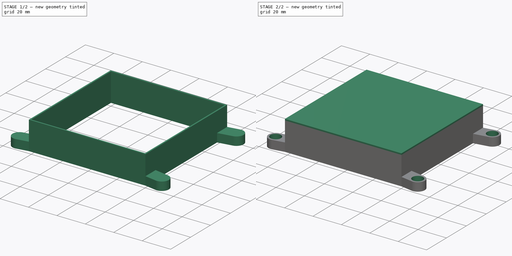
[diagram: build sequence overview — one tinted view per stage of 2, left to right]
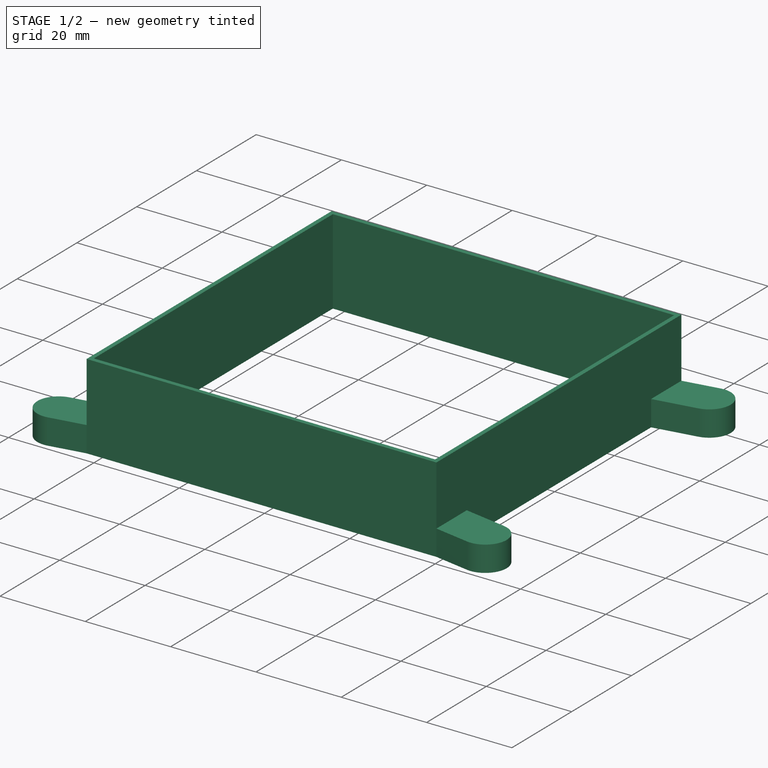
[diagram: stage 1 of 2 — iso view after this stage's code; geometry added in this stage tinted green]
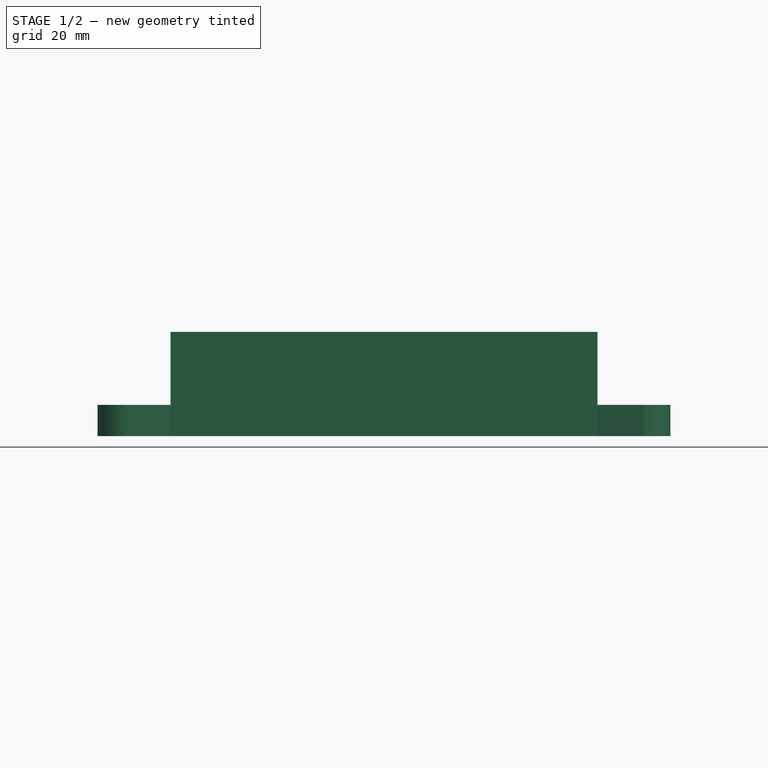
[diagram: stage 1 of 2 — front view after this stage's code; geometry added in this stage tinted green]
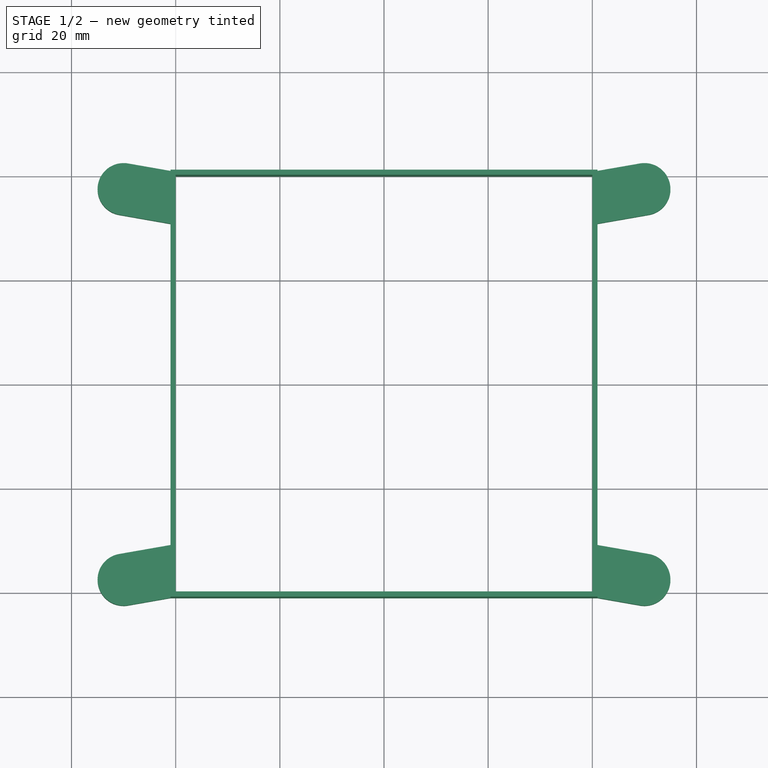
[diagram: stage 1 of 2 — top view after this stage's code; geometry added in this stage tinted green]
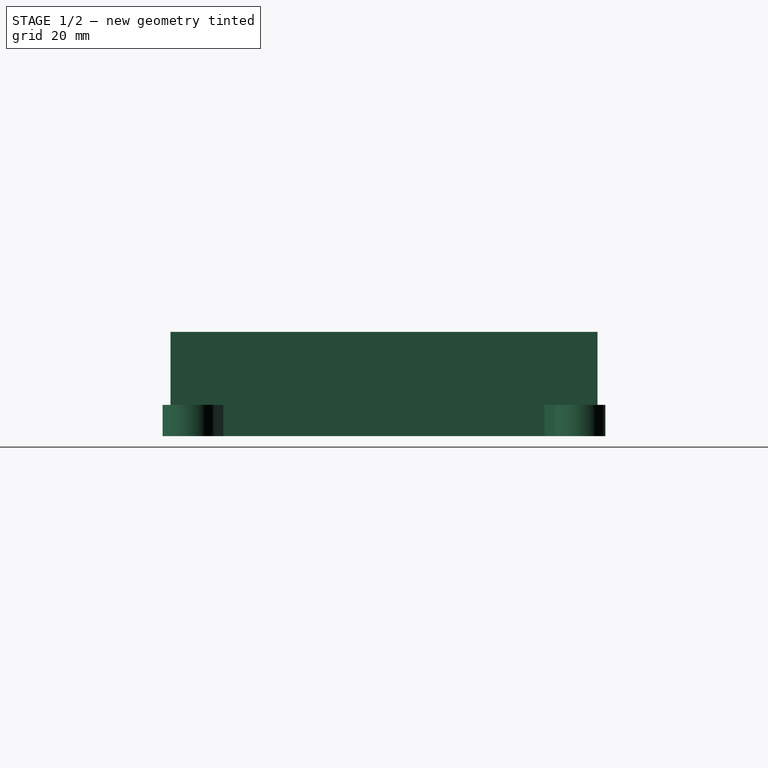
[diagram: stage 1 of 2 — right view after this stage's code; geometry added in this stage tinted green]
FCSTD DOCUMENT  (FreeCAD 1.0R38641 +678 (Git))
Label: box
License: All rights reserved
LicenseURL: https://en.wikipedia.org/wiki/All_rights_reserved
objects: Sketcher::SketchObject×4, PartDesign::Pad×3, PartDesign::Hole×1, PartDesign::Body×1
note: 21 computed .brp shape members not serialized (recipe doc carries the construction recipe); baked Part::Feature solids carry a one-line shape summary decoded from their .brp

FEATURE [Sketcher::SketchObject] Sketch218
  ArcFitTolerance = 0
  AttachmentSupport = -> [XY_Plane027]
  FullyConstrained = true
  MakeInternals = false
  MapMode = 5
  sketch-geometry (24):
    g0: LineSegment StartX=-40 StartY=40 StartZ=0 EndX=40 EndY=40 EndZ=0
    g1: LineSegment StartX=-40 StartY=40 StartZ=0 EndX=-40 EndY=-40 EndZ=0
    g2: LineSegment StartX=-40 StartY=-40 StartZ=0 EndX=40 EndY=-40 EndZ=0
    g3: LineSegment StartX=40 StartY=40 StartZ=0 EndX=40 EndY=-40 EndZ=0
    g4: LineSegment StartX=-41.0206 StartY=41 StartZ=0 EndX=40.9794 EndY=41 EndZ=0
    g5: LineSegment StartX=41 StartY=30.8522 StartZ=0 EndX=41 EndY=-30.8478 EndZ=0
    g6: LineSegment StartX=41 StartY=-41 StartZ=0 EndX=-41 EndY=-41 EndZ=0
    g7: LineSegment StartX=-41 StartY=-30.8478 StartZ=0 EndX=-41 EndY=30.8434 EndZ=0
    g8: GeomPoint [constr] X=50 Y=37.5 Z=0
    g9: GeomPoint [constr] X=-50 Y=37.5 Z=0
    g10: GeomPoint [constr] X=-50 Y=-37.5 Z=0
    g11: GeomPoint [constr] X=50 Y=-37.5 Z=0
    g12: ArcOfCircle CenterX=50 CenterY=37.5 CenterZ=0 NormalX=0 NormalY=0 NormalZ=1 AngleXU=0 Radius=5 StartAngle=4.88532 EndAngle=8.02692
    g13: ArcOfCircle CenterX=-50 CenterY=37.5 CenterZ=0 NormalX=0 NormalY=0 NormalZ=1 AngleXU=0 Radius=5 StartAngle=1.397 EndAngle=4.53859
    g14: ArcOfCircle CenterX=-50 CenterY=-37.5 CenterZ=0 NormalX=0 NormalY=0 NormalZ=1 AngleXU=0 Radius=5 StartAngle=1.74416 EndAngle=4.88575
    g15: ArcOfCircle CenterX=50 CenterY=-37.5 CenterZ=0 NormalX=0 NormalY=0 NormalZ=1 AngleXU=0 Radius=5 StartAngle=4.53903 EndAngle=7.68062
    g16: LineSegment StartX=-49.1375 StartY=-42.4251 StartZ=0 EndX=-41 EndY=-41 EndZ=0
    g17: LineSegment StartX=41 StartY=-41 StartZ=0 EndX=49.1375 EndY=-42.4251 EndZ=0
    g18: LineSegment StartX=49.1396 StartY=42.4254 StartZ=0 EndX=40.9794 EndY=41 EndZ=0
    g19: LineSegment StartX=-41.0206 StartY=41 StartZ=0 EndX=-49.1354 EndY=42.4247 EndZ=0
    g20: LineSegment StartX=41 StartY=30.8522 StartZ=0 EndX=50.8604 EndY=32.5746 EndZ=0
    g21: LineSegment StartX=-41 StartY=30.8434 StartZ=0 EndX=-50.8646 EndY=32.5753 EndZ=0
    g22: LineSegment StartX=-50.8625 StartY=-32.5749 StartZ=0 EndX=-41 EndY=-30.8478 EndZ=0
    g23: LineSegment StartX=50.8625 StartY=-32.5749 StartZ=0 EndX=41 EndY=-30.8478 EndZ=0
  constraints (60):
    c: Horizontal(g0)
    c: DistanceX(g0,g0) = 80
    c: Coincident(g1,g0)
    c: Vertical(g1)
    c: DistanceY(g1,g1) = 80
    c: Distance(g-1,g0) = 40
    c: Distance(g-1,g1) = 40
    c: Coincident(g2,g1)
    c: Horizontal(g2)
    c: Coincident(g3,g0)
    c: Coincident(g3,g2)
    c: Vertical(g3)
    c: Horizontal(g4)
    c: Vertical(g5)
    c: Horizontal(g6)
    c: Vertical(g7)
    c: DistanceY(g6,g4) = 82
    c: Distance(g6,g3) = 1
    c: DistanceX(g4,g4) = 82
    c: Distance(g4,g0) = 1
    c: DistanceX(g-2,g11) = 50
    c: DistanceY(g-1,g10) = -37.5
    c: DistanceX(g-2,g10) = -50
    c: DistanceY(g-1,g9) = 37.5
    c: DistanceX(g-2,g9) = -50
    c: DistanceY(g-1,g8) = 37.5
    c: DistanceX(g-2,g8) = 50
    c: Coincident(g12,g8)
    c: Diameter(g12) = 10
    c: DistanceY(g-1,g11) = -37.5
    c: Coincident(g13,g9)
    c: Coincident(g14,g10)
    c: Coincident(g15,g11)
    c: Equal(g12,g13)
    c: Equal(g13,g14)
    c: Equal(g14,g15)
    c: Coincident(g16,g6)
    c: Coincident(g17,g6)
    c: Coincident(g18,g4)
    c: Coincident(g19,g4)
    c: Parallel(g18,g20)
    c: Parallel(g21,g19)
    c: Parallel(g22,g16)
    c: Parallel(g23,g17)
    c: Coincident(g7,g21)
    c: Coincident(g5,g20)
    c: Coincident(g5,g23)
    c: Coincident(g7,g22)
    c: DistanceX(g6,g6) = 82
    c: Distance(g-1,g5) = 41
    c: DistanceY(g5,g5) = 61.7
    c: Distance(g-1,g7) = 41
    c: Tangent(g13,g21) = 1.5708
    c: Tangent(g13,g19) = -1.5708
    c: Tangent(g12,g18) = -1.5708
    c: Tangent(g12,g20) = -1.5708
    c: Tangent(g15,g23) = -1.5708
    c: Tangent(g15,g17) = -1.5708
    c: Tangent(g14,g16) = -1.5708
    c: Tangent(g14,g22) = 1.5708
FEATURE [PartDesign::Pad] Pad096
  Direction = (0,0,1)
  Length = 6
  Length2 = 10
  Profile = -> Sketch218
  ReferenceAxis = -> Sketch218 [N_Axis]
  Suppressed = false
  Type = 0
FEATURE [Sketcher::SketchObject] Sketch219
  ArcFitTolerance = 0
  AttachmentSupport = -> [XY_Plane027]
  FullyConstrained = true
  MakeInternals = false
  MapMode = 5
  sketch-geometry (8):
    g0: LineSegment StartX=-40 StartY=40 StartZ=0 EndX=40 EndY=40 EndZ=0
    g1: LineSegment StartX=-40 StartY=40 StartZ=0 EndX=-40 EndY=-40 EndZ=0
    g2: LineSegment StartX=-40 StartY=-40 StartZ=0 EndX=40 EndY=-40 EndZ=0
    g3: LineSegment StartX=40 StartY=40 StartZ=0 EndX=40 EndY=-40 EndZ=0
    g4: LineSegment StartX=-41 StartY=41 StartZ=0 EndX=41 EndY=41 EndZ=0
    g5: LineSegment StartX=41 StartY=41 StartZ=0 EndX=41 EndY=-41 EndZ=0
    g6: LineSegment StartX=41 StartY=-41 StartZ=0 EndX=-41 EndY=-41 EndZ=0
    g7: LineSegment StartX=-41 StartY=-41 StartZ=0 EndX=-41 EndY=41 EndZ=0
  constraints (24):
    c: Horizontal(g0)
    c: DistanceX(g0,g0) = 80
    c: Coincident(g1,g0)
    c: Vertical(g1)
    c: DistanceY(g1,g1) = 80
    c: Distance(g-1,g0) = 40
    c: Distance(g-1,g1) = 40
    c: Coincident(g2,g1)
    c: Horizontal(g2)
    c: Coincident(g3,g0)
    c: Coincident(g3,g2)
    c: Vertical(g3)
    c: Horizontal(g4)
    c: Vertical(g5)
    c: Horizontal(g6)
    c: Vertical(g7)
    c: Distance(g6,g3) = 1
    c: DistanceX(g4,g4) = 82
    c: Coincident(g6,g7)
    c: Coincident(g7,g4)
    c: Coincident(g5,g4)
    c: DistanceY(g5,g5) = 82
    c: Distance(g0,g4) = 1
    c: Coincident(g6,g5)
FEATURE [PartDesign::Pad] Pad097
  BaseFeature = -> Pad096
  Direction = (0,0,1)
  Length = 20
  Length2 = 10
  Profile = -> Sketch219
  ReferenceAxis = -> Sketch219 [N_Axis]
  Suppressed = false
  Type = 0
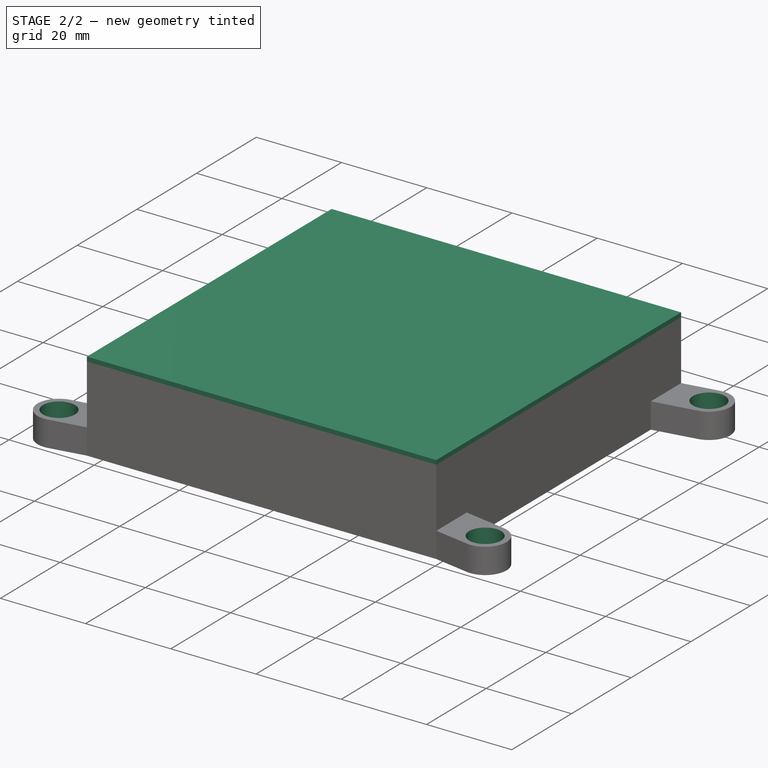
[diagram: stage 2 of 2 — iso view after this stage's code; geometry added in this stage tinted green]
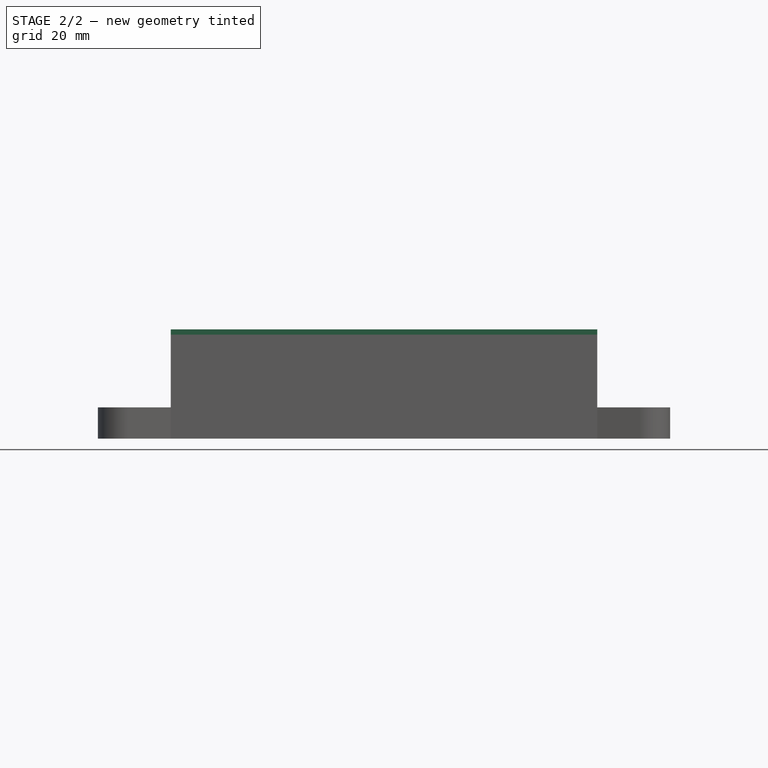
[diagram: stage 2 of 2 — front view after this stage's code; geometry added in this stage tinted green]
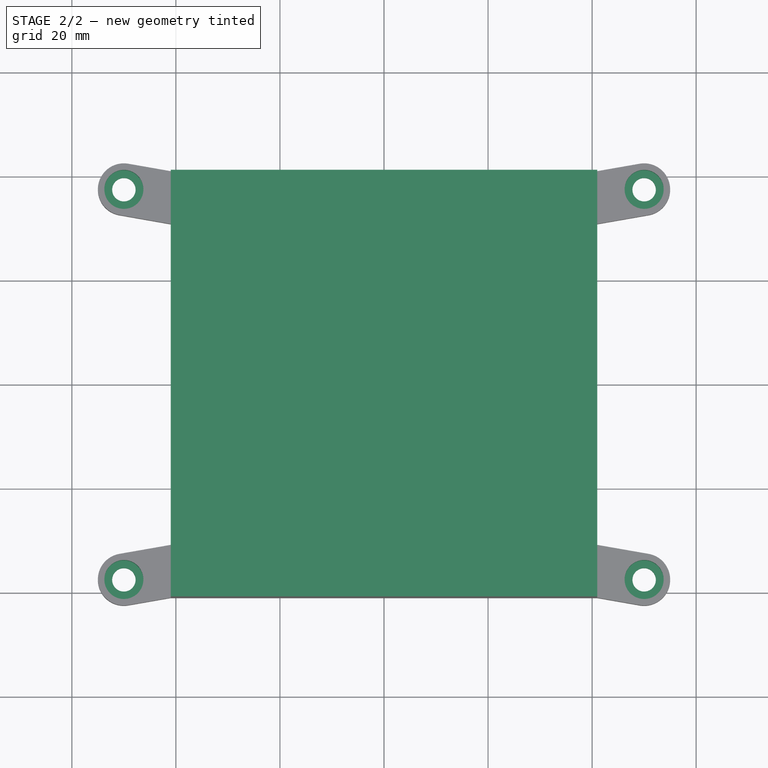
[diagram: stage 2 of 2 — top view after this stage's code; geometry added in this stage tinted green]
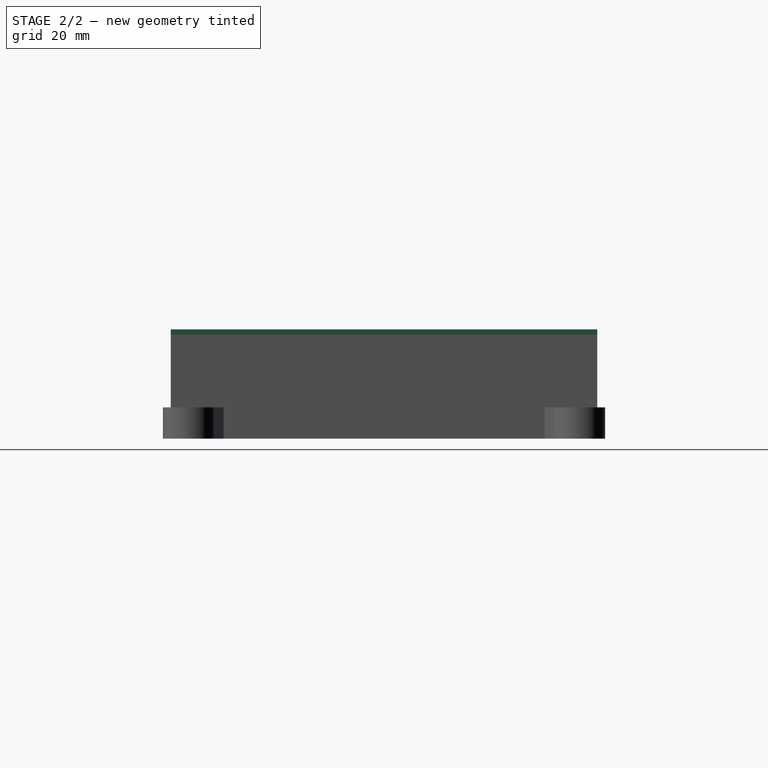
[diagram: stage 2 of 2 — right view after this stage's code; geometry added in this stage tinted green]
FEATURE [Sketcher::SketchObject] Sketch220
  ArcFitTolerance = 0
  AttachmentSupport = -> [Pad097]
  FullyConstrained = true
  MakeInternals = false
  MapMode = 5
  Placement = pos=(0,0,20) rot=(0,0,1;0rad)
  sketch-geometry (4):
    g0: LineSegment StartX=-41 StartY=41 StartZ=0 EndX=41 EndY=41 EndZ=0
    g1: LineSegment StartX=41 StartY=41 StartZ=0 EndX=41 EndY=-41 EndZ=0
    g2: LineSegment StartX=41 StartY=-41 StartZ=0 EndX=-41 EndY=-41 EndZ=0
    g3: LineSegment StartX=-41 StartY=-41 StartZ=0 EndX=-41 EndY=41 EndZ=0
  constraints (12):
    c: Horizontal(g0)
    c: Vertical(g1)
    c: Horizontal(g2)
    c: Vertical(g3)
    c: DistanceX(g0,g0) = 82
    c: Coincident(g2,g3)
    c: Coincident(g3,g0)
    c: Coincident(g1,g0)
    c: DistanceY(g1,g1) = 82
    c: Coincident(g2,g1)
    c: Distance(g-1,g0) = 41
    c: Distance(g-1,g1) = 41
FEATURE [PartDesign::Pad] Pad098
  BaseFeature = -> Pad097
  Direction = (0,0,1)
  Length = 1
  Length2 = 10
  Profile = -> Sketch220
  ReferenceAxis = -> Sketch220 [N_Axis]
  Suppressed = false
  Type = 0
FEATURE [Sketcher::SketchObject] Sketch221
  ArcFitTolerance = 0
  AttachmentSupport = -> [Pad098]
  FullyConstrained = true
  MakeInternals = false
  MapMode = 5
  Placement = pos=(0,0,6) rot=(0,0,1;0rad)
  sketch-geometry (8):
    g0: GeomPoint [constr] X=50 Y=37.5 Z=0
    g1: GeomPoint [constr] X=-50 Y=37.5 Z=0
    g2: GeomPoint [constr] X=-50 Y=-37.5 Z=0
    g3: GeomPoint [constr] X=50 Y=-37.5 Z=0
    g4: Circle CenterX=-50 CenterY=37.5 CenterZ=0 NormalX=0 NormalY=0 NormalZ=1 AngleXU=0 Radius=2.25
    g5: Circle CenterX=50 CenterY=37.5 CenterZ=0 NormalX=0 NormalY=0 NormalZ=1 AngleXU=0 Radius=2.25
    g6: Circle CenterX=50 CenterY=-37.5 CenterZ=0 NormalX=0 NormalY=0 NormalZ=1 AngleXU=0 Radius=2.25
    g7: Circle CenterX=-50 CenterY=-37.5 CenterZ=0 NormalX=0 NormalY=0 NormalZ=1 AngleXU=0 Radius=2.25
  constraints (16):
    c: DistanceX(g-2,g3) = 50
    c: DistanceY(g-1,g2) = -37.5
    c: DistanceX(g-2,g2) = -50
    c: DistanceY(g-1,g1) = 37.5
    c: DistanceX(g-2,g1) = -50
    c: DistanceY(g-1,g0) = 37.5
    c: DistanceX(g-2,g0) = 50
    c: DistanceY(g-1,g3) = -37.5
    c: Coincident(g4,g1)
    c: Coincident(g5,g0)
    c: Coincident(g6,g3)
    c: Coincident(g7,g2)
    c: Diameter(g4) = 4.5
    c: Equal(g4,g5)
    c: Equal(g5,g6)
    c: Equal(g6,g7)
FEATURE [PartDesign::Hole] Hole010
  BaseFeature = -> Pad098
  CustomThreadClearance = 0
  Depth = 24
  DepthType = 0
  Diameter = 4.5
  DrillForDepth = false
  DrillPoint = 1
  DrillPointAngle = 118
  HoleCutCountersinkAngle = 90
  HoleCutCustomValues = false
  HoleCutDepth = 4
  HoleCutDiameter = 7.5
  HoleCutType = 1
  ModelThread = false
  Profile = -> Sketch221
  Suppressed = false
  Tapered = false
  TaperedAngle = 90
  ThreadClass = 0
  ThreadDepth = 24
  ThreadDepthType = 0
  ThreadDirection = 0
  ThreadFit = 0
  ThreadSize = 0
  ThreadType = 0
  Threaded = false
  UseCustomThreadClearance = false
FEATURE [PartDesign::Body] Body026  label="box"
  AllowCompound = false
  Group = -> [Sketch218,Pad096,Sketch219,Pad097,Sketch220,Pad098,Sketch221,Hole010]
  Origin = -> Origin026
  Placement = pos=(-108,0,15) rot=(0,0,1;0rad)
  Tip = -> Hole010
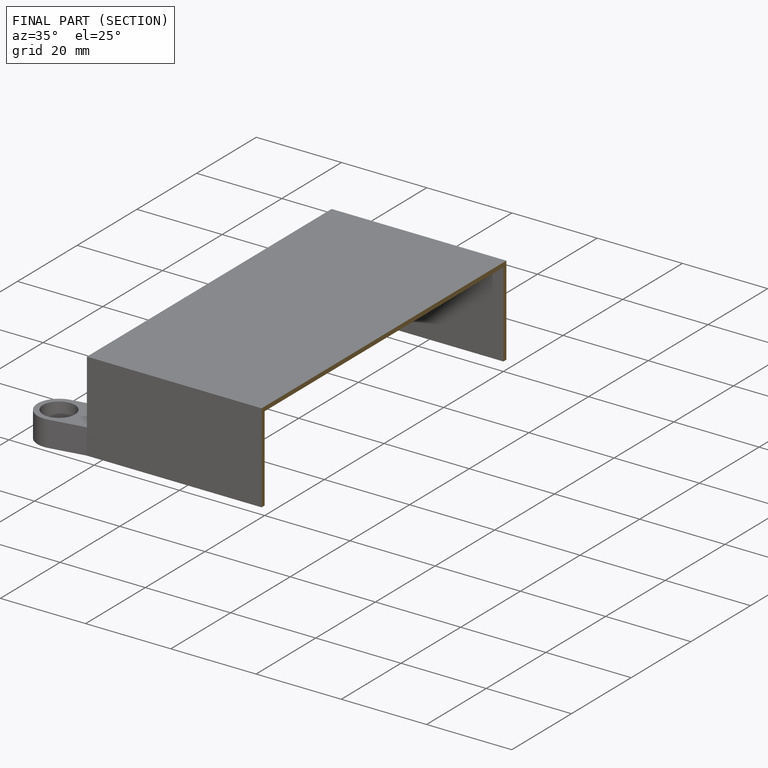
[diagram: finished part — half-section view (interior)]
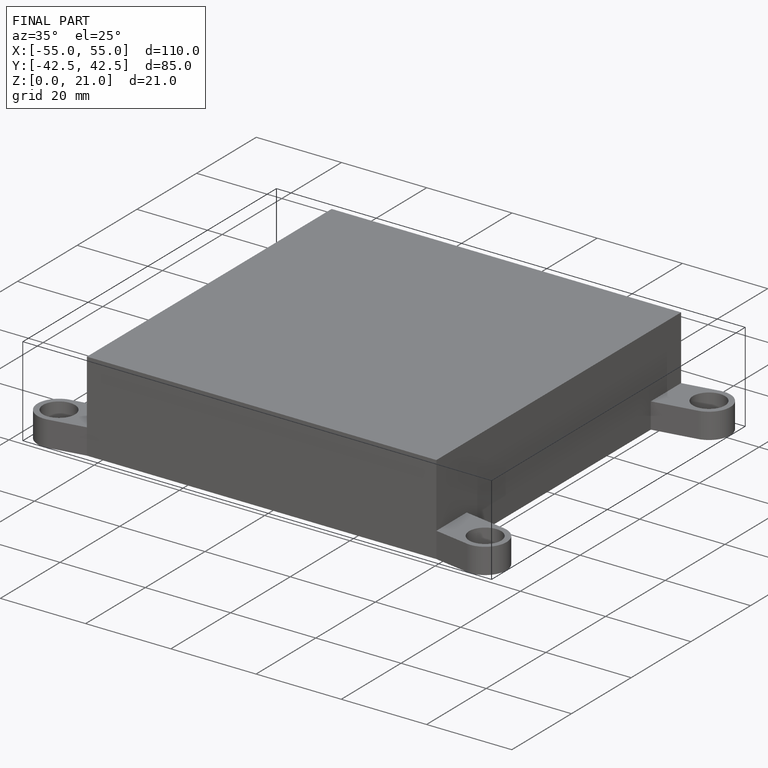
[diagram: finished part — iso view with bounding-box wireframe]
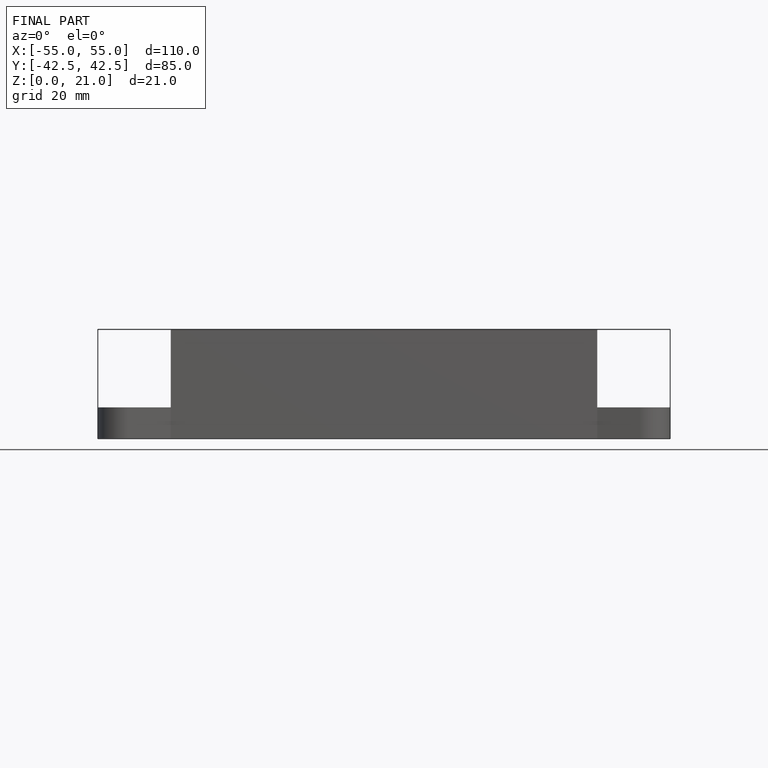
[diagram: finished part — front view with bounding-box wireframe]
